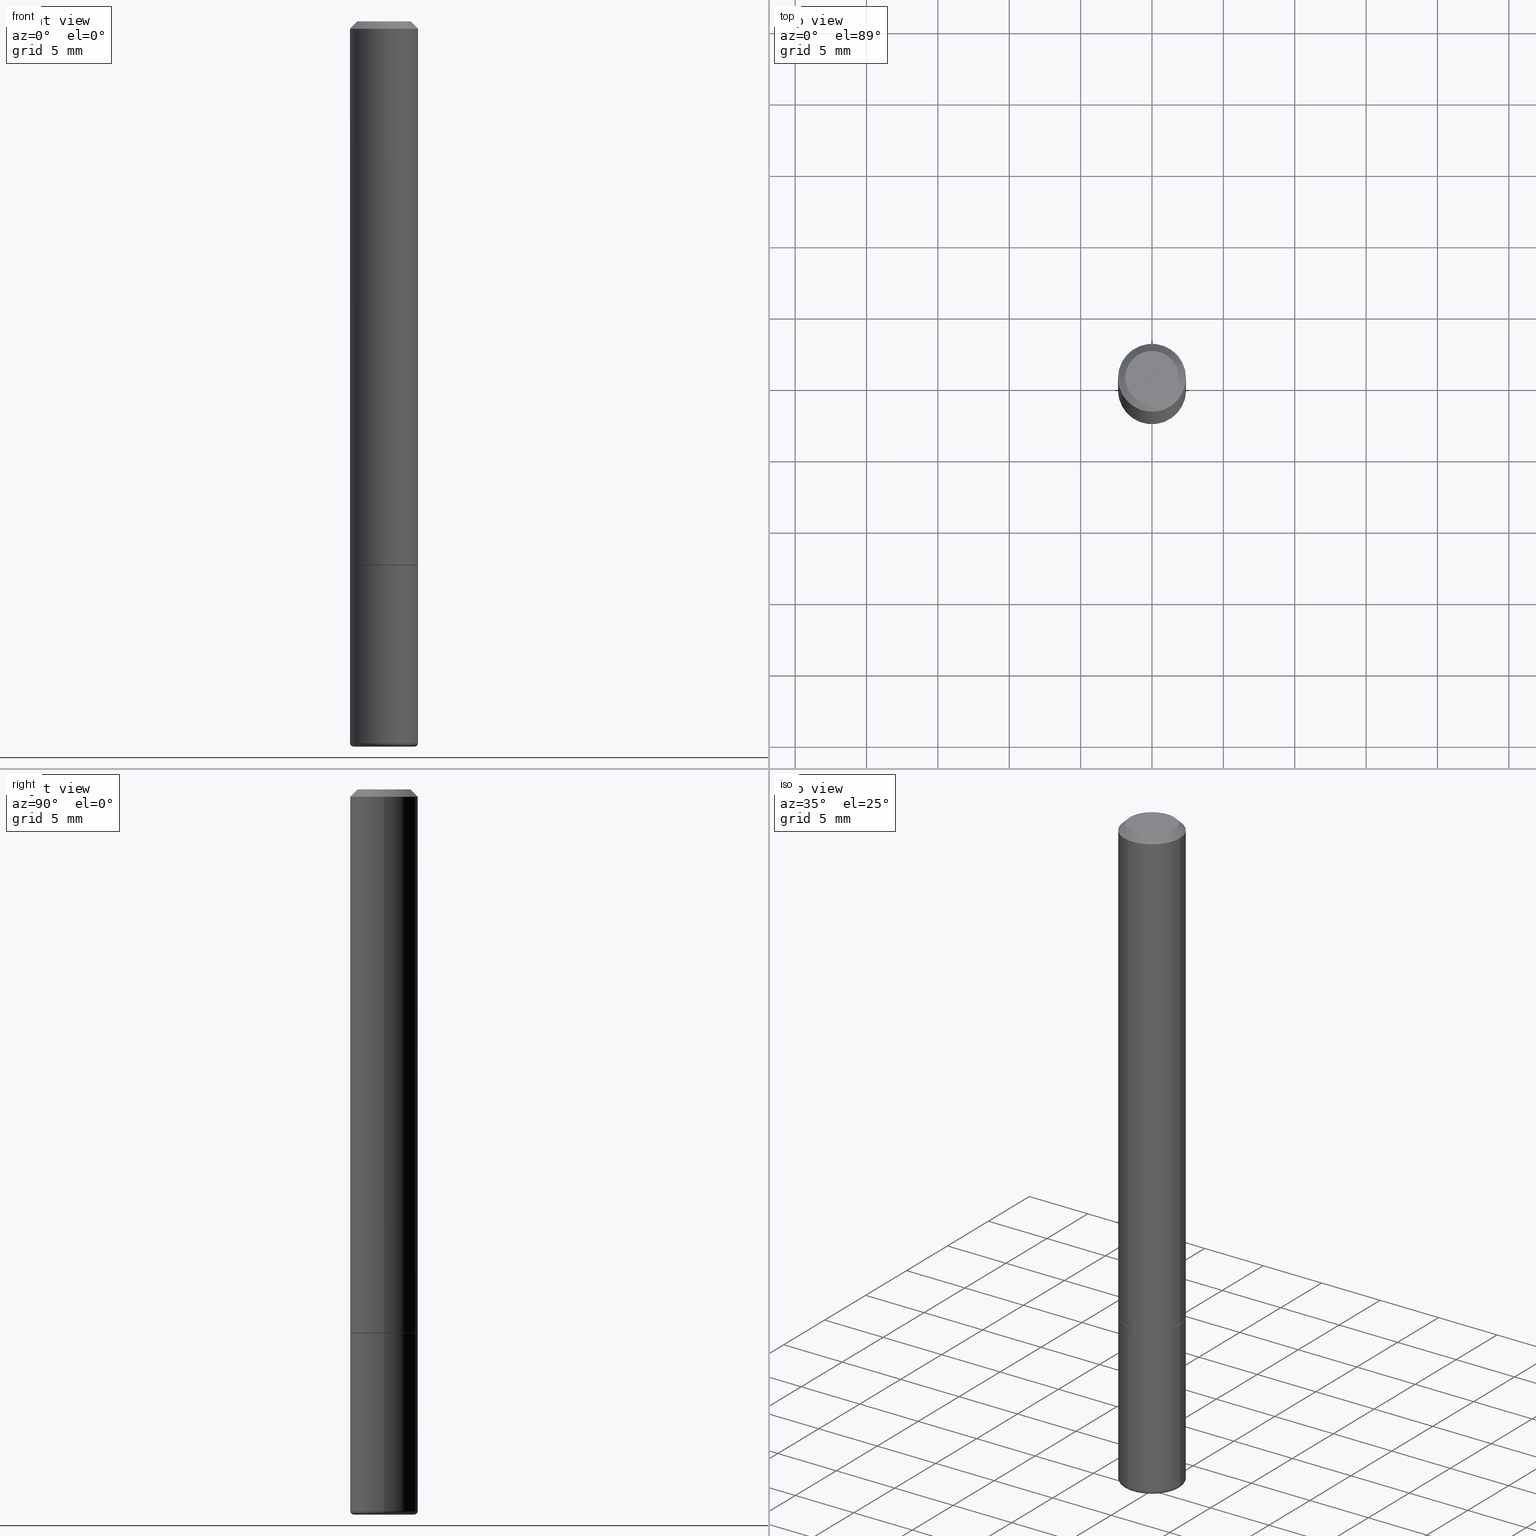
[diagram: canonical four-view strip — front | top / right | iso, engineering-drawing reading convention]
A machine part, canonical four-view strip (front | top / right | iso — engineering-drawing reading convention). The complete STEP part file that produces these views, byte-faithful:
ISO-10303-21;
HEADER;
FILE_DESCRIPTION (( 'STEP AP203' ),
    '1' );
FILE_NAME ('38782.STEP',
    '2024-03-03T12:31:34',
    ( '' ),
    ( '' ),
    'SwSTEP 2.0',
    'SolidWorks 2023',
    '' );
FILE_SCHEMA (( 'CONFIG_CONTROL_DESIGN' ));
ENDSEC;

DATA;
#1 = AXIS2_PLACEMENT_3D ( 'NONE', #410, #210, #405 ) ;
#2 = CC_DESIGN_APPROVAL ( #323, ( #325 ) ) ;
#3 = CARTESIAN_POINT ( 'NONE',  ( 0.000000000000000000, 0.000000000000000000, 0.000000000000000000 ) ) ;
#4 = ORIENTED_EDGE ( 'NONE', *, *, #109, .T. ) ;
#5 = ORIENTED_EDGE ( 'NONE', *, *, #49, .F. ) ;
#6 = TOROIDAL_SURFACE ( 'NONE', #52, 0.08375000000000000500, 0.009999999999999953371 ) ;
#7 = ORIENTED_EDGE ( 'NONE', *, *, #283, .F. ) ;
#8 = VECTOR ( 'NONE', #153, 39.37007874015748143 ) ;
#9 = CARTESIAN_POINT ( 'NONE',  ( 0.09375000000000002776, -6.546527510330876027E-16, 4.571415727308691207E-30 ) ) ;
#10 = CARTESIAN_POINT ( 'NONE',  ( 4.890937612370273194E-29, -6.982962677686291165E-15, -2.000000000000000000 ) ) ;
#11 = PERSON_AND_ORGANIZATION_ROLE ( 'design_supplier' ) ;
#12 = APPLICATION_CONTEXT ( 'configuration controlled 3d designs of mechanical parts and assemblies' ) ;
#13 = EDGE_LOOP ( 'NONE', ( #94, #32 ) ) ;
#14 = DIRECTION ( 'NONE',  ( -0.7071067811866017516, 7.493145998870549798E-15, 0.7071067811864931718 ) ) ;
#15 = CARTESIAN_POINT ( 'NONE',  ( 0.09375000000000020817, -5.888383277958964251E-15, -1.498999999999999666 ) ) ;
#16 = PERSON_AND_ORGANIZATION ( #171, #387 ) ;
#17 = CC_DESIGN_PERSON_AND_ORGANIZATION_ASSIGNMENT ( #369, #164, ( #295 ) ) ;
#18 = AXIS2_PLACEMENT_3D ( 'NONE', #383, #350, #219 ) ;
#19 = LINE ( 'NONE', #79, #273 ) ;
#20 = DIRECTION ( 'NONE',  ( 1.000000000000000000, -6.982962677686265922E-15, 4.876176775795935793E-29 ) ) ;
#21 = EDGE_LOOP ( 'NONE', ( #267, #222, #227, #262 ) ) ;
#22 = ADVANCED_FACE ( 'NONE', ( #398 ), #212, .T. ) ;
#23 = CARTESIAN_POINT ( 'NONE',  ( 5.149934974793625841E-16, 0.07375000000000006550, -2.681680299649332462E-16 ) ) ;
#24 = CIRCLE ( 'NONE', #56, 0.09375000000000001388 ) ;
#25 = AXIS2_PLACEMENT_3D ( 'NONE', #216, #320, #83 ) ;
#26 = ORIENTED_EDGE ( 'NONE', *, *, #368, .T. ) ;
#27 = APPROVAL_DATE_TIME ( #284, #291 ) ;
#28 = LINE ( 'NONE', #354, #8 ) ;
#29 = EDGE_LOOP ( 'NONE', ( #95, #124, #229, #256 ) ) ;
#30 = APPROVAL_STATUS ( 'not_yet_approved' ) ;
#31 = EDGE_CURVE ( 'NONE', #203, #128, #24, .T. ) ;
#32 = ORIENTED_EDGE ( 'NONE', *, *, #201, .T. ) ;
#33 = AXIS2_PLACEMENT_3D ( 'NONE', #116, #392, #127 ) ;
#34 = PLANE ( 'NONE',  #181 ) ;
#35 = CARTESIAN_POINT ( 'NONE',  ( -0.09375000000000001388, 5.848231242562245017E-16, -0.02000000000000001776 ) ) ;
#36 = APPROVAL_STATUS ( 'not_yet_approved' ) ;
#37 = VERTEX_POINT ( 'NONE', #240 ) ;
#38 = CC_DESIGN_PERSON_AND_ORGANIZATION_ASSIGNMENT ( #174, #11, ( #295 ) ) ;
#39 = ORIENTED_EDGE ( 'NONE', *, *, #85, .F. ) ;
#40 = DIRECTION ( 'NONE',  ( -2.445468806185136597E-29, 3.491481338843145583E-15, 1.000000000000000000 ) ) ;
#41 = VECTOR ( 'NONE', #374, 39.37007874015748143 ) ;
#42 = ORIENTED_EDGE ( 'NONE', *, *, #78, .F. ) ;
#43 = ADVANCED_FACE ( 'NONE', ( #366 ), #34, .T. ) ;
#44 = CYLINDRICAL_SURFACE ( 'NONE', #286, 0.09375000000000011102 ) ;
#45 = AXIS2_PLACEMENT_3D ( 'NONE', #97, #234, #363 ) ;
#46 = AXIS2_PLACEMENT_3D ( 'NONE', #204, #304, #271 ) ;
#47 = CARTESIAN_POINT ( 'NONE',  ( 3.668203209277704335E-29, -5.237222008264717388E-15, -1.499999999999999778 ) ) ;
#48 = COORDINATED_UNIVERSAL_TIME_OFFSET ( 5, 0, .BEHIND. ) ;
#49 = EDGE_CURVE ( 'NONE', #159, #190, #142, .T. ) ;
#50 = DIRECTION ( 'NONE',  ( 1.000000000000000000, -6.982962677686274599E-15, 0.000000000000000000 ) ) ;
#51 = CARTESIAN_POINT ( 'NONE',  ( -0.09274999999999998523, -4.572895166499002070E-15, -1.499999999999999778 ) ) ;
#52 = AXIS2_PLACEMENT_3D ( 'NONE', #375, #108, #77 ) ;
#53 = LOCAL_TIME ( 7, 31, 34.00000000000000000, #140 ) ;
#54 = APPROVAL ( #30, 'UNSPECIFIED' ) ;
#55 = ORIENTED_EDGE ( 'NONE', *, *, #364, .F. ) ;
#56 = AXIS2_PLACEMENT_3D ( 'NONE', #332, #40, #163 ) ;
#57 = CIRCLE ( 'NONE', #257, 0.07375000000000006550 ) ;
#58 = PRODUCT_RELATED_PRODUCT_CATEGORY ( 'detail', '', ( #146 ) ) ;
#59 = CARTESIAN_POINT ( 'NONE',  ( 0.08375000000000000500, -7.567785801942515371E-15, -2.000000000000000000 ) ) ;
#60 = PERSON_AND_ORGANIZATION ( #171, #387 ) ;
#61 = AXIS2_PLACEMENT_3D ( 'NONE', #74, #401, #248 ) ;
#62 = ADVANCED_FACE ( 'NONE', ( #145 ), #44, .T. ) ;
#63 = VERTEX_POINT ( 'NONE', #101 ) ;
#64 = ORIENTED_EDGE ( 'NONE', *, *, #179, .F. ) ;
#65 = DIMENSIONAL_EXPONENTS ( 1.000000000000000000, 0.000000000000000000, 0.000000000000000000, 0.000000000000000000, 0.000000000000000000, 0.000000000000000000, 0.000000000000000000 ) ;
#66 = ORIENTED_EDGE ( 'NONE', *, *, #377, .T. ) ;
#67 = ORIENTED_EDGE ( 'NONE', *, *, #161, .T. ) ;
#68 = VECTOR ( 'NONE', #99, 39.37007874015748143 ) ;
#69 = APPROVAL_DATE_TIME ( #403, #54 ) ;
#70 = CARTESIAN_POINT ( 'NONE',  ( 3.668203209277704335E-29, -5.237222008264717388E-15, -1.499999999999999778 ) ) ;
#71 = DIRECTION ( 'NONE',  ( 1.000000000000000000, -6.982962677686268288E-15, 0.000000000000000000 ) ) ;
#72 = AXIS2_PLACEMENT_3D ( 'NONE', #23, #356, #236 ) ;
#73 = DATE_AND_TIME ( #276, #327 ) ;
#74 = CARTESIAN_POINT ( 'NONE',  ( 4.890937612370273194E-29, -6.982962677686291165E-15, -2.000000000000000000 ) ) ;
#75 = DIRECTION ( 'NONE',  ( 1.000000000000000000, -6.982962677686262766E-15, 0.000000000000000000 ) ) ;
#76 = CARTESIAN_POINT ( 'NONE',  ( 3.665757740471518732E-29, -5.233730526925875170E-15, -1.498999999999999666 ) ) ;
#77 = DIRECTION ( 'NONE',  ( 1.000000000000000000, -6.982962677686265922E-15, 4.883557194083112901E-29 ) ) ;
#78 = EDGE_CURVE ( 'NONE', #206, #412, #106, .T. ) ;
#79 = CARTESIAN_POINT ( 'NONE',  ( -0.09375000000000001388, 5.848231242562245017E-16, -0.02000000000000001776 ) ) ;
#80 = AXIS2_PLACEMENT_3D ( 'NONE', #177, #378, #275 ) ;
#81 = FACE_OUTER_BOUND ( 'NONE', #395, .T. ) ;
#82 = UNCERTAINTY_MEASURE_WITH_UNIT (LENGTH_MEASURE( 1.000000000000000082E-05 ), #279, 'distance_accuracy_value', 'NONE');
#83 = DIRECTION ( 'NONE',  ( -1.000000000000000000, 6.982962677686265922E-15, -4.876176775795935793E-29 ) ) ;
#84 = CARTESIAN_POINT ( 'NONE',  ( -0.08375000000000000500, -6.334898593004988035E-15, -2.000000000000000000 ) ) ;
#85 = EDGE_CURVE ( 'NONE', #190, #63, #133, .T. ) ;
#86 = CIRCLE ( 'NONE', #230, 0.09274999999999998523 ) ;
#87 = CARTESIAN_POINT ( 'NONE',  ( 4.890937612370276662E-31, -6.982962677686296539E-17, -0.02000000000000001776 ) ) ;
#88 = ADVANCED_FACE ( 'NONE', ( #316 ), #141, .T. ) ;
#89 = ORIENTED_EDGE ( 'NONE', *, *, #399, .F. ) ;
#90 = CIRCLE ( 'NONE', #272, 0.09375000000000001388 ) ;
#91 = CC_DESIGN_SECURITY_CLASSIFICATION ( #218, ( #295 ) ) ;
#92 = APPROVAL_PERSON_ORGANIZATION ( #178, #291, #319 ) ;
#93 = VERTEX_POINT ( 'NONE', #15 ) ;
#94 = ORIENTED_EDGE ( 'NONE', *, *, #409, .T. ) ;
#95 = ORIENTED_EDGE ( 'NONE', *, *, #277, .F. ) ;
#96 = CC_DESIGN_PERSON_AND_ORGANIZATION_ASSIGNMENT ( #16, #132, ( #218 ) ) ;
#97 = CARTESIAN_POINT ( 'NONE',  ( 3.668203209277704335E-29, -5.237222008264717388E-15, -1.499999999999999778 ) ) ;
#98 = APPROVAL_PERSON_ORGANIZATION ( #211, #54, #335 ) ;
#99 = DIRECTION ( 'NONE',  ( -2.445468806185136877E-29, 3.491481338843145188E-15, 1.000000000000000000 ) ) ;
#100 = PERSON_AND_ORGANIZATION ( #171, #387 ) ;
#101 = CARTESIAN_POINT ( 'NONE',  ( 0.09374999999999998612, -7.602700615330948598E-15, -1.989999999999999991 ) ) ;
#102 = CC_DESIGN_PERSON_AND_ORGANIZATION_ASSIGNMENT ( #100, #315, ( #325 ) ) ;
#103 = LENGTH_MEASURE_WITH_UNIT ( LENGTH_MEASURE( 0.02539999999999999897 ), #345 );
#104 = DIRECTION ( 'NONE',  ( 1.000000000000000000, -6.982962677686262766E-15, 0.000000000000000000 ) ) ;
#105 = TOROIDAL_SURFACE ( 'NONE', #80, 0.08375000000000000500, 0.009999999999999953371 ) ;
#106 = LINE ( 'NONE', #346, #371 ) ;
#107 = LINE ( 'NONE', #290, #68 ) ;
#108 = DIRECTION ( 'NONE',  ( -2.445468806185136597E-29, 3.491481338843145583E-15, 1.000000000000000000 ) ) ;
#109 = EDGE_CURVE ( 'NONE', #37, #206, #310, .T. ) ;
#110 = ORIENTED_EDGE ( 'NONE', *, *, #377, .F. ) ;
#111 = CIRCLE ( 'NONE', #358, 0.09375000000000001388 ) ;
#112 = CIRCLE ( 'NONE', #372, 0.009999999999999944697 ) ;
#113 = CARTESIAN_POINT ( 'NONE',  ( 3.668203209277704335E-29, -5.237222008264717388E-15, -1.499999999999999778 ) ) ;
#114 = DESIGN_CONTEXT ( 'detailed design', #12, 'design' ) ;
#115 = ADVANCED_FACE ( 'NONE', ( #338 ), #6, .T. ) ;
#116 = CARTESIAN_POINT ( 'NONE',  ( 3.668203209277704335E-29, -5.237222008264717388E-15, -1.499999999999999778 ) ) ;
#117 = DIRECTION ( 'NONE',  ( -1.000000000000000000, 6.982962677686265922E-15, 0.000000000000000000 ) ) ;
#118 = CARTESIAN_POINT ( 'NONE',  ( 4.890937612370273194E-29, -6.982962677686291165E-15, -2.000000000000000000 ) ) ;
#119 = ORIENTED_EDGE ( 'NONE', *, *, #305, .T. ) ;
#120 = AXIS2_PLACEMENT_3D ( 'NONE', #87, #224, #355 ) ;
#121 = CYLINDRICAL_SURFACE ( 'NONE', #156, 0.09375000000000002776 ) ;
#122 = EDGE_CURVE ( 'NONE', #63, #237, #294, .T. ) ;
#123 = ORIENTED_EDGE ( 'NONE', *, *, #399, .T. ) ;
#124 = ORIENTED_EDGE ( 'NONE', *, *, #49, .T. ) ;
#125 = APPLICATION_PROTOCOL_DEFINITION ( 'international standard', 'config_control_design', 1994, #12 ) ;
#126 = VECTOR ( 'NONE', #186, 39.37007874015748143 ) ;
#127 = DIRECTION ( 'NONE',  ( 1.000000000000000000, -6.982962677686265922E-15, 4.876176775795935793E-29 ) ) ;
#128 = VERTEX_POINT ( 'NONE', #209 ) ;
#129 = CC_DESIGN_DATE_AND_TIME_ASSIGNMENT ( #73, #215, ( #218 ) ) ;
#130 = EDGE_LOOP ( 'NONE', ( #289, #110 ) ) ;
#131 = ORIENTED_EDGE ( 'NONE', *, *, #364, .T. ) ;
#132 = PERSON_AND_ORGANIZATION_ROLE ( 'classification_officer' ) ;
#133 = CIRCLE ( 'NONE', #191, 0.009999999999999944697 ) ;
#134 = CARTESIAN_POINT ( 'NONE',  ( 4.866482924308422209E-29, -6.948047864297860305E-15, -1.989999999999999991 ) ) ;
#135 = CC_DESIGN_APPROVAL ( #291, ( #218 ) ) ;
#136 = MANIFOLD_SOLID_BREP ( 'Body-Move/Copy2[1]', #280 ) ;
#137 = EDGE_CURVE ( 'NONE', #352, #298, #111, .T. ) ;
#138 = MANIFOLD_SOLID_BREP ( 'Body-Move/Copy2[2]', #217 ) ;
#139 = APPLICATION_PROTOCOL_DEFINITION ( 'international standard', 'config_control_design', 1994, #396 ) ;
#140 = COORDINATED_UNIVERSAL_TIME_OFFSET ( 5, 0, .BEHIND. ) ;
#141 = CYLINDRICAL_SURFACE ( 'NONE', #1, 0.09375000000000011102 ) ;
#142 = CIRCLE ( 'NONE', #61, 0.08375000000000000500 ) ;
#143 = AXIS2_PLACEMENT_3D ( 'NONE', #281, #144, #175 ) ;
#144 = DIRECTION ( 'NONE',  ( 0.000000000000000000, 0.000000000000000000, 1.000000000000000000 ) ) ;
#145 = FACE_OUTER_BOUND ( 'NONE', #330, .T. ) ;
#146 = PRODUCT ( '38782', '38782', '', ( #278 ) ) ;
#147 = EDGE_CURVE ( 'NONE', #237, #63, #414, .T. ) ;
#148 = EDGE_LOOP ( 'NONE', ( #160, #119, #199, #89 ) ) ;
#149 = CONICAL_SURFACE ( 'NONE', #182, 0.09274999999999998523, 0.7853981633975251064 ) ;
#150 = FACE_OUTER_BOUND ( 'NONE', #148, .T. ) ;
#151 = EDGE_CURVE ( 'NONE', #298, #352, #90, .T. ) ;
#152 = LINE ( 'NONE', #381, #126 ) ;
#153 = DIRECTION ( 'NONE',  ( -2.445468806185136877E-29, 3.491481338843145188E-15, 1.000000000000000000 ) ) ;
#154 = ADVANCED_FACE ( 'NONE', ( #81 ), #149, .T. ) ;
#155 = AXIS2_PLACEMENT_3D ( 'NONE', #347, #242, #370 ) ;
#156 = AXIS2_PLACEMENT_3D ( 'NONE', #3, #250, #187 ) ;
#157 = ORIENTED_EDGE ( 'NONE', *, *, #413, .F. ) ;
#158 = DATE_AND_TIME ( #362, #317 ) ;
#159 = VERTEX_POINT ( 'NONE', #84 ) ;
#160 = ORIENTED_EDGE ( 'NONE', *, *, #122, .T. ) ;
#161 = EDGE_CURVE ( 'NONE', #37, #93, #292, .T. ) ;
#162 = CIRCLE ( 'NONE', #46, 0.09375000000000001388 ) ;
#163 = DIRECTION ( 'NONE',  ( 1.000000000000000000, -6.982962677686265922E-15, 0.000000000000000000 ) ) ;
#164 = PERSON_AND_ORGANIZATION_ROLE ( 'creator' ) ;
#165 = EDGE_LOOP ( 'NONE', ( #225, #26, #194, #397 ) ) ;
#166 = SECURITY_CLASSIFICATION_LEVEL ( 'unclassified' ) ;
#167 = CALENDAR_DATE ( 2024, 3, 3 ) ;
#168 = FACE_OUTER_BOUND ( 'NONE', #13, .T. ) ;
#169 = ADVANCED_FACE ( 'NONE', ( #293 ), #379, .F. ) ;
#170 =( NAMED_UNIT ( * ) SI_UNIT ( $, .STERADIAN. ) SOLID_ANGLE_UNIT ( ) );
#171 = PERSON ( 'UNSPECIFIED', 'UNSPECIFIED', 'UNSPECIFIED', ('UNSPECIFIED'), ('UNSPECIFIED'), ('UNSPECIFIED') ) ;
#172 = AXIS2_PLACEMENT_3D ( 'NONE', #118, #351, #255 ) ;
#173 = DIRECTION ( 'NONE',  ( -2.445468806185136597E-29, 3.491481338843145583E-15, 1.000000000000000000 ) ) ;
#174 = PERSON_AND_ORGANIZATION ( #171, #387 ) ;
#175 = DIRECTION ( 'NONE',  ( 1.000000000000000000, 0.000000000000000000, 0.000000000000000000 ) ) ;
#176 = DIRECTION ( 'NONE',  ( -6.982962677686266711E-15, -1.000000000000000000, 3.491481338843145583E-15 ) ) ;
#177 = CARTESIAN_POINT ( 'NONE',  ( 4.866482924308422209E-29, -6.948047864297860305E-15, -1.989999999999999991 ) ) ;
#178 = PERSON_AND_ORGANIZATION ( #171, #387 ) ;
#179 = EDGE_CURVE ( 'NONE', #190, #159, #287, .T. ) ;
#180 = DIRECTION ( 'NONE',  ( 2.438088387897960049E-29, -3.491481338843145188E-15, -1.000000000000000000 ) ) ;
#181 = AXIS2_PLACEMENT_3D ( 'NONE', #10, #180, #373 ) ;
#182 = AXIS2_PLACEMENT_3D ( 'NONE', #113, #384, #221 ) ;
#183 = DIRECTION ( 'NONE',  ( 2.445468806185136597E-29, -3.491481338843145583E-15, -1.000000000000000000 ) ) ;
#184 = DIRECTION ( 'NONE',  ( -2.445468806185136597E-29, 3.491481338843145583E-15, 1.000000000000000000 ) ) ;
#185 = COORDINATED_UNIVERSAL_TIME_OFFSET ( 5, 0, .BEHIND. ) ;
#186 = DIRECTION ( 'NONE',  ( -2.445468806185136877E-29, 3.491481338843145188E-15, 1.000000000000000000 ) ) ;
#187 = DIRECTION ( 'NONE',  ( 1.000000000000000000, -6.982962677686265922E-15, 4.876176775795935793E-29 ) ) ;
#188 = CARTESIAN_POINT ( 'NONE',  ( 0.09274999999999998523, -5.884891796620118089E-15, -1.499999999999999778 ) ) ;
#189 = ADVANCED_FACE ( 'NONE', ( #386 ), #213, .T. ) ;
#190 = VERTEX_POINT ( 'NONE', #59 ) ;
#191 = AXIS2_PLACEMENT_3D ( 'NONE', #241, #176, #50 ) ;
#192 = DIRECTION ( 'NONE',  ( 1.000000000000000000, -6.982962677686261189E-15, 0.000000000000000000 ) ) ;
#193 = CARTESIAN_POINT ( 'NONE',  ( -0.09375000000000001388, -5.426501121506194922E-15, -1.499999999999999778 ) ) ;
#194 = ORIENTED_EDGE ( 'NONE', *, *, #413, .T. ) ;
#195 = DIRECTION ( 'NONE',  ( -2.445468806185136597E-29, 3.491481338843145583E-15, 1.000000000000000000 ) ) ;
#196 = CC_DESIGN_PERSON_AND_ORGANIZATION_ASSIGNMENT ( #60, #301, ( #146 ) ) ;
#197 = ORIENTED_EDGE ( 'NONE', *, *, #277, .T. ) ;
#198 = LOCAL_TIME ( 7, 31, 34.00000000000000000, #185 ) ;
#199 = ORIENTED_EDGE ( 'NONE', *, *, #137, .F. ) ;
#200 = EDGE_LOOP ( 'NONE', ( #361, #417, #123, #357 ) ) ;
#201 = EDGE_CURVE ( 'NONE', #258, #322, #282, .T. ) ;
#202 = APPROVAL_DATE_TIME ( #158, #323 ) ;
#203 = VERTEX_POINT ( 'NONE', #35 ) ;
#204 = CARTESIAN_POINT ( 'NONE',  ( 4.890937612370276662E-31, -6.982962677686296539E-17, -0.02000000000000001776 ) ) ;
#205 = APPROVAL_PERSON_ORGANIZATION ( #265, #323, #263 ) ;
#206 = VERTEX_POINT ( 'NONE', #51 ) ;
#207 = PRODUCT_DEFINITION_SHAPE ( 'NONE', 'NONE',  #325 ) ;
#208 = ADVANCED_FACE ( 'NONE', ( #360 ), #353, .T. ) ;
#209 = CARTESIAN_POINT ( 'NONE',  ( 0.09375000000000001388, -7.130013140679441850E-16, -0.02000000000000001776 ) ) ;
#210 = DIRECTION ( 'NONE',  ( -2.445468806185136597E-29, 3.491481338843145583E-15, 1.000000000000000000 ) ) ;
#211 = PERSON_AND_ORGANIZATION ( #171, #387 ) ;
#212 = CONICAL_SURFACE ( 'NONE', #45, 0.09274999999999998523, 0.7853981633975251064 ) ;
#213 = CONICAL_SURFACE ( 'NONE', #120, 0.09375000000000001388, 0.7853981633974469467 ) ;
#214 = DIRECTION ( 'NONE',  ( -2.445468806185136597E-29, 3.491481338843145583E-15, 1.000000000000000000 ) ) ;
#215 = DATE_TIME_ROLE ( 'classification_date' ) ;
#216 = CARTESIAN_POINT ( 'NONE',  ( 3.668203209277704335E-29, -5.237222008264717388E-15, -1.499999999999999778 ) ) ;
#217 = CLOSED_SHELL ( 'NONE', ( #154, #62, #208, #189, #88, #22, #249, #220 ) ) ;
#218 = SECURITY_CLASSIFICATION ( '', '', #166 ) ;
#219 = DIRECTION ( 'NONE',  ( 1.000000000000000000, -6.982962677686265922E-15, 4.876176775795935793E-29 ) ) ;
#220 = ADVANCED_FACE ( 'NONE', ( #168 ), #238, .F. ) ;
#221 = DIRECTION ( 'NONE',  ( 1.000000000000000000, -6.982962677686262766E-15, 0.000000000000000000 ) ) ;
#222 = ORIENTED_EDGE ( 'NONE', *, *, #409, .F. ) ;
#223 = AXIS2_PLACEMENT_3D ( 'NONE', #390, #232, #307 ) ;
#224 = DIRECTION ( 'NONE',  ( 2.445468806185136597E-29, -3.491481338843145583E-15, -1.000000000000000000 ) ) ;
#225 = ORIENTED_EDGE ( 'NONE', *, *, #201, .F. ) ;
#226 = EDGE_CURVE ( 'NONE', #93, #128, #107, .T. ) ;
#227 = ORIENTED_EDGE ( 'NONE', *, *, #339, .T. ) ;
#228 = DIRECTION ( 'NONE',  ( 1.000000000000000000, -6.982962677686265922E-15, 4.878439923190939118E-29 ) ) ;
#229 = ORIENTED_EDGE ( 'NONE', *, *, #85, .T. ) ;
#230 = AXIS2_PLACEMENT_3D ( 'NONE', #47, #173, #75 ) ;
#231 = ORIENTED_EDGE ( 'NONE', *, *, #122, .F. ) ;
#232 = DIRECTION ( 'NONE',  ( -2.445468806185136597E-29, 3.491481338843145583E-15, 1.000000000000000000 ) ) ;
#233 = CARTESIAN_POINT ( 'NONE',  ( 4.890937612370276662E-31, -6.982962677686296539E-17, -0.02000000000000001776 ) ) ;
#234 = DIRECTION ( 'NONE',  ( -2.445468806185136597E-29, 3.491481338843145583E-15, 1.000000000000000000 ) ) ;
#235 = DIRECTION ( 'NONE',  ( -2.445468806185136877E-29, 3.491481338843145188E-15, 1.000000000000000000 ) ) ;
#236 = DIRECTION ( 'NONE',  ( -1.000000000000000000, 6.982962677686265922E-15, -4.876176775795935793E-29 ) ) ;
#237 = VERTEX_POINT ( 'NONE', #402 ) ;
#238 = PLANE ( 'NONE',  #72 ) ;
#239 = CIRCLE ( 'NONE', #311, 0.09375000000000020817 ) ;
#240 = CARTESIAN_POINT ( 'NONE',  ( 0.09274999999999998523, -5.884891796620118089E-15, -1.499999999999999778 ) ) ;
#241 = CARTESIAN_POINT ( 'NONE',  ( 0.08375000000000000500, -7.532870988554085300E-15, -1.989999999999999991 ) ) ;
#242 = DIRECTION ( 'NONE',  ( -2.445468806185136597E-29, 3.491481338843145583E-15, 1.000000000000000000 ) ) ;
#243 = AXIS2_PLACEMENT_3D ( 'NONE', #134, #214, #343 ) ;
#244 = CIRCLE ( 'NONE', #342, 0.09375000000000020817 ) ;
#245 = CC_DESIGN_DATE_AND_TIME_ASSIGNMENT ( #407, #367, ( #325 ) ) ;
#246 = FACE_OUTER_BOUND ( 'NONE', #29, .T. ) ;
#247 = DIRECTION ( 'NONE',  ( -2.445468806185136597E-29, 3.491481338843145583E-15, 1.000000000000000000 ) ) ;
#248 = DIRECTION ( 'NONE',  ( 1.000000000000000000, -6.982962677686265922E-15, 0.000000000000000000 ) ) ;
#249 = ADVANCED_FACE ( 'NONE', ( #251 ), #266, .F. ) ;
#250 = DIRECTION ( 'NONE',  ( -2.445468806185136597E-29, 3.491481338843145583E-15, 1.000000000000000000 ) ) ;
#251 = FACE_OUTER_BOUND ( 'NONE', #130, .T. ) ;
#252 = CARTESIAN_POINT ( 'NONE',  ( 0.09375000000000001388, -5.891874759297804892E-15, -1.499999999999999778 ) ) ;
#253 = CARTESIAN_POINT ( 'NONE',  ( 3.668203209277704335E-29, -5.237222008264717388E-15, -1.499999999999999778 ) ) ;
#254 = EDGE_LOOP ( 'NONE', ( #7, #285, #388, #328 ) ) ;
#255 = DIRECTION ( 'NONE',  ( 1.000000000000000000, -6.982962677686265922E-15, 0.000000000000000000 ) ) ;
#256 = ORIENTED_EDGE ( 'NONE', *, *, #147, .F. ) ;
#257 = AXIS2_PLACEMENT_3D ( 'NONE', #404, #195, #228 ) ;
#258 = VERTEX_POINT ( 'NONE', #269 ) ;
#259 = DIRECTION ( 'NONE',  ( -1.000000000000000000, 7.105427357600964782E-15, 0.000000000000000000 ) ) ;
#260 = ORIENTED_EDGE ( 'NONE', *, *, #151, .T. ) ;
#261 = ADVANCED_FACE ( 'NONE', ( #313 ), #121, .T. ) ;
#262 = ORIENTED_EDGE ( 'NONE', *, *, #31, .T. ) ;
#263 = APPROVAL_ROLE ( '' ) ;
#264 = ORIENTED_EDGE ( 'NONE', *, *, #283, .T. ) ;
#265 = PERSON_AND_ORGANIZATION ( #171, #387 ) ;
#266 = PLANE ( 'NONE',  #33 ) ;
#267 = ORIENTED_EDGE ( 'NONE', *, *, #368, .F. ) ;
#268 = CYLINDRICAL_SURFACE ( 'NONE', #18, 0.09375000000000002776 ) ;
#269 = CARTESIAN_POINT ( 'NONE',  ( 0.07375000000000006550, -6.094815207017975989E-16, -2.134256245049812442E-17 ) ) ;
#270 = EDGE_LOOP ( 'NONE', ( #326, #260 ) ) ;
#271 = DIRECTION ( 'NONE',  ( 1.000000000000000000, -6.982962677686265922E-15, 0.000000000000000000 ) ) ;
#272 = AXIS2_PLACEMENT_3D ( 'NONE', #253, #184, #192 ) ;
#273 = VECTOR ( 'NONE', #380, 39.37007874015748143 ) ;
#274 = DIRECTION ( 'NONE',  ( -2.445468806185136597E-29, 3.491481338843145583E-15, 1.000000000000000000 ) ) ;
#275 = DIRECTION ( 'NONE',  ( 1.000000000000000000, -6.982962677686265922E-15, 4.883557194083112901E-29 ) ) ;
#276 = CALENDAR_DATE ( 2024, 3, 3 ) ;
#277 = EDGE_CURVE ( 'NONE', #159, #237, #112, .T. ) ;
#278 = MECHANICAL_CONTEXT ( 'NONE', #396, 'mechanical' ) ;
#279 =( CONVERSION_BASED_UNIT ( 'INCH', #103 ) LENGTH_UNIT ( ) NAMED_UNIT ( #65 ) );
#280 = CLOSED_SHELL ( 'NONE', ( #299, #115, #169, #261, #394, #43 ) ) ;
#281 = CARTESIAN_POINT ( 'NONE',  ( 0.000000000000000000, 0.000000000000000000, 0.000000000000000000 ) ) ;
#282 = CIRCLE ( 'NONE', #223, 0.07375000000000006550 ) ;
#283 = EDGE_CURVE ( 'NONE', #412, #203, #28, .T. ) ;
#284 = DATE_AND_TIME ( #348, #198 ) ;
#285 = ORIENTED_EDGE ( 'NONE', *, *, #312, .T. ) ;
#286 = AXIS2_PLACEMENT_3D ( 'NONE', #318, #274, #20 ) ;
#287 = CIRCLE ( 'NONE', #172, 0.08375000000000000500 ) ;
#288 = VECTOR ( 'NONE', #235, 39.37007874015748143 ) ;
#289 = ORIENTED_EDGE ( 'NONE', *, *, #109, .F. ) ;
#290 = CARTESIAN_POINT ( 'NONE',  ( 0.09375000000000011102, -6.546527510330881944E-16, 4.571415727308695411E-30 ) ) ;
#291 = APPROVAL ( #314, 'UNSPECIFIED' ) ;
#292 = LINE ( 'NONE', #188, #340 ) ;
#293 = FACE_OUTER_BOUND ( 'NONE', #270, .T. ) ;
#294 = CIRCLE ( 'NONE', #155, 0.09375000000000002776 ) ;
#295 = PRODUCT_DEFINITION_FORMATION_WITH_SPECIFIED_SOURCE ( 'ANY', '', #146, .NOT_KNOWN. ) ;
#296 = DIRECTION ( 'NONE',  ( -2.445468806185136597E-29, 3.491481338843145583E-15, 1.000000000000000000 ) ) ;
#297 = ADVANCED_BREP_SHAPE_REPRESENTATION ( '38782', ( #136, #138, #143 ), #400 ) ;
#298 = VERTEX_POINT ( 'NONE', #193 ) ;
#299 = ADVANCED_FACE ( 'NONE', ( #150 ), #268, .T. ) ;
#300 = ORIENTED_EDGE ( 'NONE', *, *, #161, .F. ) ;
#301 = PERSON_AND_ORGANIZATION_ROLE ( 'design_owner' ) ;
#302 = ORIENTED_EDGE ( 'NONE', *, *, #78, .T. ) ;
#303 = ORIENTED_EDGE ( 'NONE', *, *, #312, .F. ) ;
#304 = DIRECTION ( 'NONE',  ( -2.445468806185136597E-29, 3.491481338843145583E-15, 1.000000000000000000 ) ) ;
#305 = EDGE_CURVE ( 'NONE', #237, #298, #152, .T. ) ;
#306 = EDGE_LOOP ( 'NONE', ( #365, #197, #231, #39 ) ) ;
#307 = DIRECTION ( 'NONE',  ( 1.000000000000000000, -6.982962677686265922E-15, 4.878439923190939118E-29 ) ) ;
#308 = DIRECTION ( 'NONE',  ( 1.000000000000000000, -6.982962677686261189E-15, 0.000000000000000000 ) ) ;
#309 = COORDINATED_UNIVERSAL_TIME_OFFSET ( 5, 0, .BEHIND. ) ;
#310 = CIRCLE ( 'NONE', #385, 0.09274999999999998523 ) ;
#311 = AXIS2_PLACEMENT_3D ( 'NONE', #331, #333, #71 ) ;
#312 = EDGE_CURVE ( 'NONE', #412, #93, #244, .T. ) ;
#313 = FACE_OUTER_BOUND ( 'NONE', #200, .T. ) ;
#314 = APPROVAL_STATUS ( 'not_yet_approved' ) ;
#315 = PERSON_AND_ORGANIZATION_ROLE ( 'creator' ) ;
#316 = FACE_OUTER_BOUND ( 'NONE', #254, .T. ) ;
#317 = LOCAL_TIME ( 7, 31, 34.00000000000000000, #393 ) ;
#318 = CARTESIAN_POINT ( 'NONE',  ( 0.000000000000000000, 0.000000000000000000, 0.000000000000000000 ) ) ;
#319 = APPROVAL_ROLE ( '' ) ;
#320 = DIRECTION ( 'NONE',  ( 2.438088387897960049E-29, -3.491481338843145188E-15, -1.000000000000000000 ) ) ;
#321 = ORIENTED_EDGE ( 'NONE', *, *, #226, .F. ) ;
#322 = VERTEX_POINT ( 'NONE', #324 ) ;
#323 = APPROVAL ( #36, 'UNSPECIFIED' ) ;
#324 = CARTESIAN_POINT ( 'NONE',  ( -0.07375000000000006550, 5.499083108677936415E-16, -2.134256245050577883E-17 ) ) ;
#325 = PRODUCT_DEFINITION ( 'UNKNOWN', '', #295, #114 ) ;
#326 = ORIENTED_EDGE ( 'NONE', *, *, #137, .T. ) ;
#327 = LOCAL_TIME ( 7, 31, 34.00000000000000000, #48 ) ;
#328 = ORIENTED_EDGE ( 'NONE', *, *, #31, .F. ) ;
#329 = CARTESIAN_POINT ( 'NONE',  ( -0.09375000000000020817, -1.985646262076270971E-15, -1.498999999999999666 ) ) ;
#330 = EDGE_LOOP ( 'NONE', ( #131, #264, #157, #321 ) ) ;
#331 = CARTESIAN_POINT ( 'NONE',  ( 3.665757740471518732E-29, -5.233730526925875170E-15, -1.498999999999999666 ) ) ;
#332 = CARTESIAN_POINT ( 'NONE',  ( 4.890937612370276662E-31, -6.982962677686296539E-17, -0.02000000000000001776 ) ) ;
#333 = DIRECTION ( 'NONE',  ( -2.445468806185136597E-29, 3.491481338843145583E-15, 1.000000000000000000 ) ) ;
#334 = EDGE_LOOP ( 'NONE', ( #42, #66, #67, #303 ) ) ;
#335 = APPROVAL_ROLE ( '' ) ;
#336 = DIRECTION ( 'NONE',  ( -2.445468806185136597E-29, 3.491481338843145583E-15, 1.000000000000000000 ) ) ;
#337 = CARTESIAN_POINT ( 'NONE',  ( 0.09375000000000001388, -7.130013140679441850E-16, -0.02000000000000001776 ) ) ;
#338 = FACE_OUTER_BOUND ( 'NONE', #306, .T. ) ;
#339 = EDGE_CURVE ( 'NONE', #322, #203, #19, .T. ) ;
#340 = VECTOR ( 'NONE', #418, 39.37007874015748854 ) ;
#341 = LINE ( 'NONE', #337, #41 ) ;
#342 = AXIS2_PLACEMENT_3D ( 'NONE', #76, #296, #389 ) ;
#343 = DIRECTION ( 'NONE',  ( 1.000000000000000000, -6.982962677686270655E-15, 0.000000000000000000 ) ) ;
#344 = CALENDAR_DATE ( 2024, 3, 3 ) ;
#345 =( LENGTH_UNIT ( ) NAMED_UNIT ( * ) SI_UNIT ( $, .METRE. ) );
#346 = CARTESIAN_POINT ( 'NONE',  ( -0.09274999999999998523, -4.578193620847224472E-15, -1.499999999999999778 ) ) ;
#347 = CARTESIAN_POINT ( 'NONE',  ( 4.866482924308422209E-29, -6.948047864297860305E-15, -1.989999999999999991 ) ) ;
#348 = CALENDAR_DATE ( 2024, 3, 3 ) ;
#349 = LOCAL_TIME ( 7, 31, 34.00000000000000000, #309 ) ;
#350 = DIRECTION ( 'NONE',  ( -2.445468806185136597E-29, 3.491481338843145583E-15, 1.000000000000000000 ) ) ;
#351 = DIRECTION ( 'NONE',  ( -2.445468806185136597E-29, 3.491481338843145583E-15, 1.000000000000000000 ) ) ;
#352 = VERTEX_POINT ( 'NONE', #252 ) ;
#353 = CONICAL_SURFACE ( 'NONE', #415, 0.09375000000000001388, 0.7853981633974469467 ) ;
#354 = CARTESIAN_POINT ( 'NONE',  ( -0.09375000000000011102, 6.661338147750947131E-16, -4.611501647113979600E-30 ) ) ;
#355 = DIRECTION ( 'NONE',  ( -1.000000000000000000, 6.982962677686265922E-15, 0.000000000000000000 ) ) ;
#356 = DIRECTION ( 'NONE',  ( 2.438088387897960049E-29, -3.491481338843145188E-15, -1.000000000000000000 ) ) ;
#357 = ORIENTED_EDGE ( 'NONE', *, *, #151, .F. ) ;
#358 = AXIS2_PLACEMENT_3D ( 'NONE', #70, #336, #308 ) ;
#359 = CC_DESIGN_APPROVAL ( #54, ( #295 ) ) ;
#360 = FACE_OUTER_BOUND ( 'NONE', #165, .T. ) ;
#361 = ORIENTED_EDGE ( 'NONE', *, *, #305, .F. ) ;
#362 = CALENDAR_DATE ( 2024, 3, 3 ) ;
#363 = DIRECTION ( 'NONE',  ( 1.000000000000000000, -6.982962677686262766E-15, 0.000000000000000000 ) ) ;
#364 = EDGE_CURVE ( 'NONE', #93, #412, #239, .T. ) ;
#365 = ORIENTED_EDGE ( 'NONE', *, *, #179, .T. ) ;
#366 = FACE_OUTER_BOUND ( 'NONE', #391, .T. ) ;
#367 = DATE_TIME_ROLE ( 'creation_date' ) ;
#368 = EDGE_CURVE ( 'NONE', #258, #128, #341, .T. ) ;
#369 = PERSON_AND_ORGANIZATION ( #171, #387 ) ;
#370 = DIRECTION ( 'NONE',  ( 1.000000000000000000, -6.982962677686270655E-15, 0.000000000000000000 ) ) ;
#371 = VECTOR ( 'NONE', #14, 39.37007874015748854 ) ;
#372 = AXIS2_PLACEMENT_3D ( 'NONE', #416, #382, #259 ) ;
#373 = DIRECTION ( 'NONE',  ( -1.000000000000000000, 6.982962677686265922E-15, -4.876176775795935793E-29 ) ) ;
#374 = DIRECTION ( 'NONE',  ( 0.7071067811865465735, -7.319954787623252890E-15, -0.7071067811865484609 ) ) ;
#375 = CARTESIAN_POINT ( 'NONE',  ( 4.866482924308422209E-29, -6.948047864297860305E-15, -1.989999999999999991 ) ) ;
#376 =( NAMED_UNIT ( * ) PLANE_ANGLE_UNIT ( ) SI_UNIT ( $, .RADIAN. ) );
#377 = EDGE_CURVE ( 'NONE', #206, #37, #86, .T. ) ;
#378 = DIRECTION ( 'NONE',  ( -2.445468806185136597E-29, 3.491481338843145583E-15, 1.000000000000000000 ) ) ;
#379 = PLANE ( 'NONE',  #25 ) ;
#380 = DIRECTION ( 'NONE',  ( -0.7071067811865465735, 2.468850131082246805E-15, -0.7071067811865484609 ) ) ;
#381 = CARTESIAN_POINT ( 'NONE',  ( -0.09375000000000002776, 6.661338147750941215E-16, -4.611501647113975397E-30 ) ) ;
#382 = DIRECTION ( 'NONE',  ( 7.105427357601001859E-15, 1.000000000000000000, -3.491481338843145583E-15 ) ) ;
#383 = CARTESIAN_POINT ( 'NONE',  ( 0.000000000000000000, 0.000000000000000000, 0.000000000000000000 ) ) ;
#384 = DIRECTION ( 'NONE',  ( -2.445468806185136597E-29, 3.491481338843145583E-15, 1.000000000000000000 ) ) ;
#385 = AXIS2_PLACEMENT_3D ( 'NONE', #408, #247, #104 ) ;
#386 = FACE_OUTER_BOUND ( 'NONE', #21, .T. ) ;
#387 = ORGANIZATION ( 'UNSPECIFIED', 'UNSPECIFIED', '' ) ;
#388 = ORIENTED_EDGE ( 'NONE', *, *, #226, .T. ) ;
#389 = DIRECTION ( 'NONE',  ( 1.000000000000000000, -6.982962677686268288E-15, 0.000000000000000000 ) ) ;
#390 = CARTESIAN_POINT ( 'NONE',  ( 5.219257071676098903E-46, -7.451715851902235727E-32, -2.134256245050205639E-17 ) ) ;
#391 = EDGE_LOOP ( 'NONE', ( #64, #5 ) ) ;
#392 = DIRECTION ( 'NONE',  ( -2.438088387897960049E-29, 3.491481338843145188E-15, 1.000000000000000000 ) ) ;
#393 = COORDINATED_UNIVERSAL_TIME_OFFSET ( 5, 0, .BEHIND. ) ;
#394 = ADVANCED_FACE ( 'NONE', ( #246 ), #105, .T. ) ;
#395 = EDGE_LOOP ( 'NONE', ( #4, #302, #55, #300 ) ) ;
#396 = APPLICATION_CONTEXT ( 'configuration controlled 3d designs of mechanical parts and assemblies' ) ;
#397 = ORIENTED_EDGE ( 'NONE', *, *, #339, .F. ) ;
#398 = FACE_OUTER_BOUND ( 'NONE', #334, .T. ) ;
#399 = EDGE_CURVE ( 'NONE', #63, #352, #406, .T. ) ;
#400 =( GEOMETRIC_REPRESENTATION_CONTEXT ( 3 ) GLOBAL_UNCERTAINTY_ASSIGNED_CONTEXT ( ( #82 ) ) GLOBAL_UNIT_ASSIGNED_CONTEXT ( ( #279, #376, #170 ) ) REPRESENTATION_CONTEXT ( 'NONE', 'WORKASPACE' ) );
#401 = DIRECTION ( 'NONE',  ( -2.445468806185136597E-29, 3.491481338843145583E-15, 1.000000000000000000 ) ) ;
#402 = CARTESIAN_POINT ( 'NONE',  ( -0.09374999999999998612, -6.281914049522767170E-15, -1.989999999999999991 ) ) ;
#403 = DATE_AND_TIME ( #344, #349 ) ;
#404 = CARTESIAN_POINT ( 'NONE',  ( 5.219257071676098903E-46, -7.451715851902235727E-32, -2.134256245050205639E-17 ) ) ;
#405 = DIRECTION ( 'NONE',  ( 1.000000000000000000, -6.982962677686265922E-15, 4.876176775795935793E-29 ) ) ;
#406 = LINE ( 'NONE', #9, #288 ) ;
#407 = DATE_AND_TIME ( #167, #53 ) ;
#408 = CARTESIAN_POINT ( 'NONE',  ( 3.668203209277704335E-29, -5.237222008264717388E-15, -1.499999999999999778 ) ) ;
#409 = EDGE_CURVE ( 'NONE', #322, #258, #57, .T. ) ;
#410 = CARTESIAN_POINT ( 'NONE',  ( 0.000000000000000000, 0.000000000000000000, 0.000000000000000000 ) ) ;
#411 = SHAPE_DEFINITION_REPRESENTATION ( #207, #297 ) ;
#412 = VERTEX_POINT ( 'NONE', #329 ) ;
#413 = EDGE_CURVE ( 'NONE', #128, #203, #162, .T. ) ;
#414 = CIRCLE ( 'NONE', #243, 0.09375000000000002776 ) ;
#415 = AXIS2_PLACEMENT_3D ( 'NONE', #233, #183, #117 ) ;
#416 = CARTESIAN_POINT ( 'NONE',  ( -0.08375000000000000500, -6.352968323098776462E-15, -1.989999999999999991 ) ) ;
#417 = ORIENTED_EDGE ( 'NONE', *, *, #147, .T. ) ;
#418 = DIRECTION ( 'NONE',  ( 0.7071067811866017516, -2.468850131082825040E-15, 0.7071067811864931718 ) ) ;
ENDSEC;
END-ISO-10303-21;
